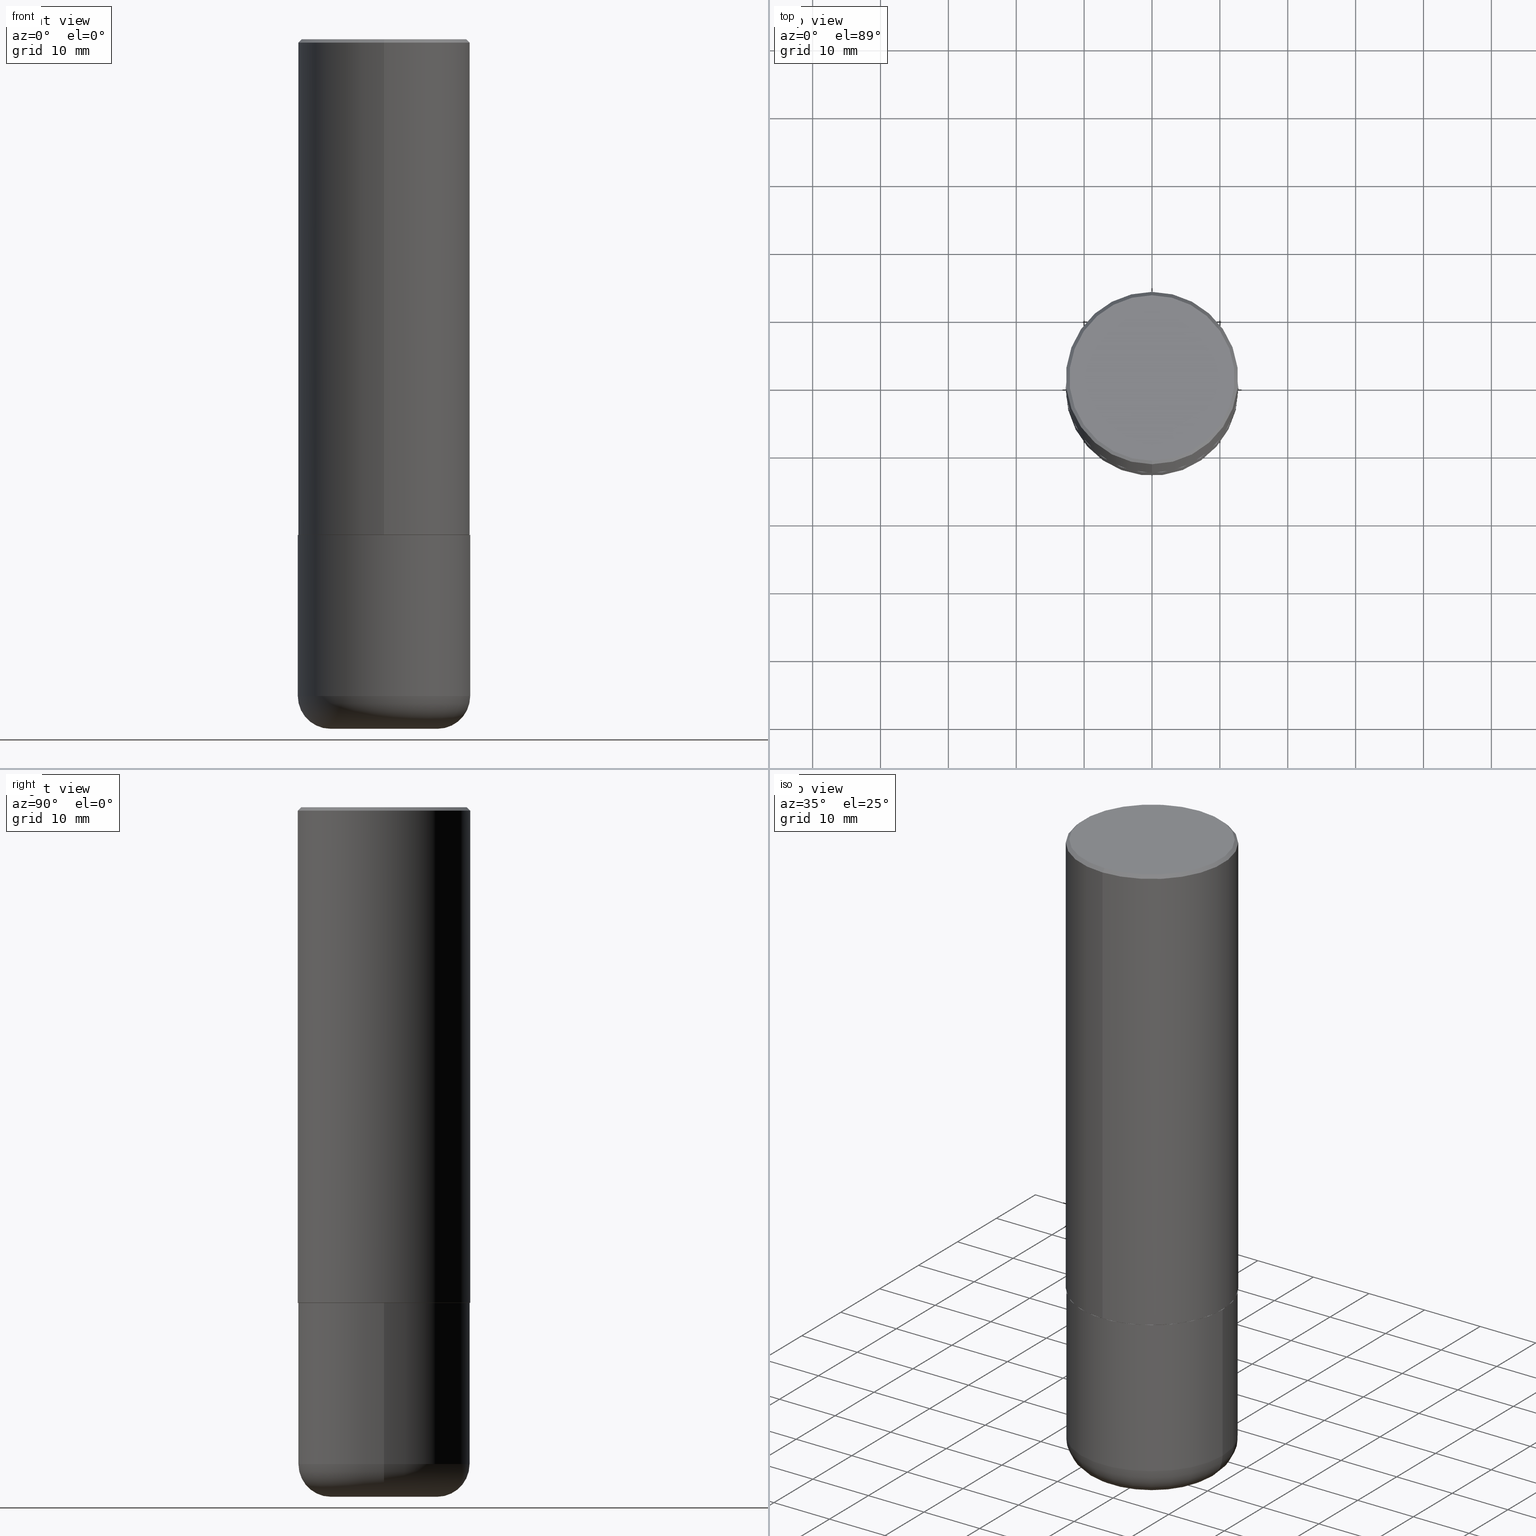
[diagram: canonical four-view strip — front | top / right | iso, engineering-drawing reading convention]
A machine part, canonical four-view strip (front | top / right | iso — engineering-drawing reading convention). The complete STEP part file that produces these views, byte-faithful:
ISO-10303-21;
HEADER;
FILE_DESCRIPTION (( 'STEP AP203' ),
    '1' );
FILE_NAME ('38612.STEP',
    '2024-03-03T08:16:31',
    ( '' ),
    ( '' ),
    'SwSTEP 2.0',
    'SolidWorks 2023',
    '' );
FILE_SCHEMA (( 'CONFIG_CONTROL_DESIGN' ));
ENDSEC;

DATA;
#1 = DATE_AND_TIME ( #295, #306 ) ;
#2 = DIRECTION ( 'NONE',  ( 1.000000000000000000, -6.982962677686263555E-15, 0.000000000000000000 ) ) ;
#3 = CC_DESIGN_DATE_AND_TIME_ASSIGNMENT ( #32, #195, ( #71 ) ) ;
#4 = FACE_OUTER_BOUND ( 'NONE', #118, .T. ) ;
#5 = ORIENTED_EDGE ( 'NONE', *, *, #134, .F. ) ;
#6 = AXIS2_PLACEMENT_3D ( 'NONE', #39, #392, #105 ) ;
#7 = ORIENTED_EDGE ( 'NONE', *, *, #237, .T. ) ;
#8 = DIRECTION ( 'NONE',  ( 2.445184338623419231E-29, -3.491888712582412558E-15, -1.000000000000000000 ) ) ;
#9 = CARTESIAN_POINT ( 'NONE',  ( -3.430248998885765387E-15, -0.5000000000000001110, -0.01999999999999835937 ) ) ;
#10 = ADVANCED_FACE ( 'NONE', ( #313 ), #322, .T. ) ;
#11 = CIRCLE ( 'NONE', #228, 0.3099999999999999978 ) ;
#12 = LOCAL_TIME ( 3, 16, 31.00000000000000000, #193 ) ;
#13 = DIRECTION ( 'NONE',  ( -2.445468806185136597E-29, 3.491481338843145583E-15, 1.000000000000000000 ) ) ;
#14 = ORIENTED_EDGE ( 'NONE', *, *, #165, .T. ) ;
#15 = CARTESIAN_POINT ( 'NONE',  ( 4.890368677246865823E-31, -6.983777425164860418E-17, -0.02000000000000010797 ) ) ;
#16 = EDGE_LOOP ( 'NONE', ( #344, #217 ) ) ;
#17 = ADVANCED_BREP_SHAPE_REPRESENTATION ( '38612', ( #349, #204, #164 ), #280 ) ;
#18 = DIRECTION ( 'NONE',  ( 2.438088387897960049E-29, -3.491481338843145188E-15, -1.000000000000000000 ) ) ;
#19 = ADVANCED_FACE ( 'NONE', ( #127 ), #257, .T. ) ;
#20 = EDGE_LOOP ( 'NONE', ( #243, #402, #315, #182 ) ) ;
#21 = AXIS2_PLACEMENT_3D ( 'NONE', #369, #82, #372 ) ;
#22 = CARTESIAN_POINT ( 'NONE',  ( 7.027459789203708394E-29, -1.003568815996185455E-14, -2.874000000000000110 ) ) ;
#23 = EDGE_LOOP ( 'NONE', ( #203, #271, #341, #363 ) ) ;
#24 = EDGE_LOOP ( 'NONE', ( #302, #376 ) ) ;
#25 = PERSON_AND_ORGANIZATION_ROLE ( 'creator' ) ;
#26 = LINE ( 'NONE', #35, #342 ) ;
#27 = EDGE_CURVE ( 'NONE', #187, #400, #97, .T. ) ;
#28 = PERSON_AND_ORGANIZATION ( #394, #124 ) ;
#29 = CIRCLE ( 'NONE', #149, 0.5000000000000001110 ) ;
#30 = CARTESIAN_POINT ( 'NONE',  ( 0.000000000000000000, 0.000000000000000000, 0.000000000000000000 ) ) ;
#31 = UNCERTAINTY_MEASURE_WITH_UNIT (LENGTH_MEASURE( 1.000000000000000082E-05 ), #317, 'distance_accuracy_value', 'NONE');
#32 = DATE_AND_TIME ( #325, #12 ) ;
#33 = DIRECTION ( 'NONE',  ( -2.445468806185136877E-29, 3.491481338843145188E-15, 1.000000000000000000 ) ) ;
#34 = DATE_AND_TIME ( #154, #150 ) ;
#35 = CARTESIAN_POINT ( 'NONE',  ( 0.5000000000000000000, -3.491481338843133355E-15, 2.438088387897967896E-29 ) ) ;
#36 = ADVANCED_FACE ( 'NONE', ( #410 ), #380, .T. ) ;
#37 = CARTESIAN_POINT ( 'NONE',  ( 3.857019660645771864E-45, -5.508085097911161414E-31, -1.577394227388672604E-16 ) ) ;
#38 = CARTESIAN_POINT ( 'NONE',  ( 3.552713678800538006E-15, 0.4999999999999903411, -2.874000000000001442 ) ) ;
#39 = CARTESIAN_POINT ( 'NONE',  ( 9.317236151565370389E-29, -1.330254390099238573E-14, -3.810000000000000053 ) ) ;
#40 = DIRECTION ( 'NONE',  ( -6.982962677686265922E-15, -1.000000000000000000, 3.491888712582412164E-15 ) ) ;
#41 = ORIENTED_EDGE ( 'NONE', *, *, #208, .T. ) ;
#42 = AXIS2_PLACEMENT_3D ( 'NONE', #43, #8, #390 ) ;
#43 = CARTESIAN_POINT ( 'NONE',  ( 3.351822085289409125E-15, 0.4800000000000002043, -1.754976293408992439E-15 ) ) ;
#44 = VERTEX_POINT ( 'NONE', #360 ) ;
#45 = CC_DESIGN_PERSON_AND_ORGANIZATION_ASSIGNMENT ( #259, #25, ( #190 ) ) ;
#46 = FACE_OUTER_BOUND ( 'NONE', #148, .T. ) ;
#47 = EDGE_LOOP ( 'NONE', ( #171, #304 ) ) ;
#48 = AXIS2_PLACEMENT_3D ( 'NONE', #260, #159, #290 ) ;
#49 = AXIS2_PLACEMENT_3D ( 'NONE', #77, #200, #395 ) ;
#50 = CARTESIAN_POINT ( 'NONE',  ( 0.3099999999999999978, -1.613064378545532091E-14, -3.999999999999999556 ) ) ;
#51 = ORIENTED_EDGE ( 'NONE', *, *, #27, .T. ) ;
#52 = PRODUCT_DEFINITION_SHAPE ( 'NONE', 'NONE',  #190 ) ;
#53 = CC_DESIGN_PERSON_AND_ORGANIZATION_ASSIGNMENT ( #28, #414, ( #199 ) ) ;
#54 = DIRECTION ( 'NONE',  ( 4.937700262164536209E-15, 0.7071067811865434649, -0.7071067811865516806 ) ) ;
#55 = EDGE_LOOP ( 'NONE', ( #245, #368, #353, #211 ) ) ;
#56 = CARTESIAN_POINT ( 'NONE',  ( 4.890368677246865823E-31, -6.983777425164860418E-17, -0.02000000000000010797 ) ) ;
#57 = ORIENTED_EDGE ( 'NONE', *, *, #81, .F. ) ;
#58 = AXIS2_PLACEMENT_3D ( 'NONE', #264, #68, #329 ) ;
#59 = COORDINATED_UNIVERSAL_TIME_OFFSET ( 5, 0, .BEHIND. ) ;
#60 = ORIENTED_EDGE ( 'NONE', *, *, #239, .T. ) ;
#61 = APPLICATION_CONTEXT ( 'configuration controlled 3d designs of mechanical parts and assemblies' ) ;
#62 = APPROVAL ( #104, 'UNSPECIFIED' ) ;
#63 = DIRECTION ( 'NONE',  ( 2.445184338623419792E-29, -3.491888712582412164E-15, -1.000000000000000000 ) ) ;
#64 = EDGE_CURVE ( 'NONE', #175, #113, #227, .T. ) ;
#65 = PERSON_AND_ORGANIZATION ( #394, #124 ) ;
#66 = VECTOR ( 'NONE', #143, 39.37007874015748143 ) ;
#67 = PERSON_AND_ORGANIZATION_ROLE ( 'classification_officer' ) ;
#68 = DIRECTION ( 'NONE',  ( -2.445184338623419792E-29, 3.491888712582412164E-15, 1.000000000000000000 ) ) ;
#69 = DIRECTION ( 'NONE',  ( -2.445468806185136597E-29, 3.491481338843145583E-15, 1.000000000000000000 ) ) ;
#70 = CONICAL_SURFACE ( 'NONE', #58, 0.4989999999999999991, 0.7853981633977213939 ) ;
#71 = SECURITY_CLASSIFICATION ( '', '', #357 ) ;
#72 = EDGE_CURVE ( 'NONE', #115, #175, #352, .T. ) ;
#73 = PLANE ( 'NONE',  #42 ) ;
#74 = CONICAL_SURFACE ( 'NONE', #130, 0.5000000000000001110, 0.7853981633974459475 ) ;
#75 = DIMENSIONAL_EXPONENTS ( 1.000000000000000000, 0.000000000000000000, 0.000000000000000000, 0.000000000000000000, 0.000000000000000000, 0.000000000000000000, 0.000000000000000000 ) ;
#76 = EDGE_CURVE ( 'NONE', #409, #44, #26, .T. ) ;
#77 = CARTESIAN_POINT ( 'NONE',  ( 9.317236151565370389E-29, -1.330254390099238573E-14, -3.810000000000000053 ) ) ;
#78 = ORIENTED_EDGE ( 'NONE', *, *, #76, .F. ) ;
#79 = DIRECTION ( 'NONE',  ( 1.000000000000000000, -6.982962677686266711E-15, 0.000000000000000000 ) ) ;
#80 = VERTEX_POINT ( 'NONE', #223 ) ;
#81 = EDGE_CURVE ( 'NONE', #409, #175, #220, .T. ) ;
#82 = DIRECTION ( 'NONE',  ( -6.982962677686266711E-15, -1.000000000000000000, 3.491481338843145583E-15 ) ) ;
#83 = ORIENTED_EDGE ( 'NONE', *, *, #76, .T. ) ;
#84 = EDGE_CURVE ( 'NONE', #371, #187, #416, .T. ) ;
#85 = CIRCLE ( 'NONE', #262, 0.5000000000000000000 ) ;
#86 = FACE_OUTER_BOUND ( 'NONE', #24, .T. ) ;
#87 = VERTEX_POINT ( 'NONE', #384 ) ;
#88 = DIRECTION ( 'NONE',  ( -6.982962677686265922E-15, -1.000000000000000000, 3.284787166730577015E-15 ) ) ;
#89 = EDGE_LOOP ( 'NONE', ( #284, #14 ) ) ;
#90 = ADVANCED_FACE ( 'NONE', ( #230 ), #212, .T. ) ;
#91 = LINE ( 'NONE', #244, #66 ) ;
#92 = ORIENTED_EDGE ( 'NONE', *, *, #333, .F. ) ;
#93 = AXIS2_PLACEMENT_3D ( 'NONE', #278, #401, #88 ) ;
#94 = CIRCLE ( 'NONE', #412, 0.5000000000000003331 ) ;
#95 = CARTESIAN_POINT ( 'NONE',  ( 3.545608251442969735E-15, 0.4989999999999899516, -2.875000000000001332 ) ) ;
#96 = APPROVAL_ROLE ( '' ) ;
#97 = LINE ( 'NONE', #320, #234 ) ;
#98 = COORDINATED_UNIVERSAL_TIME_OFFSET ( 5, 0, .BEHIND. ) ;
#99 = CIRCLE ( 'NONE', #288, 0.5000000000000000000 ) ;
#100 = PERSON_AND_ORGANIZATION_ROLE ( 'design_owner' ) ;
#101 = DIRECTION ( 'NONE',  ( -2.445184338623420072E-29, 3.491888712582412558E-15, 1.000000000000000000 ) ) ;
#102 = CARTESIAN_POINT ( 'NONE',  ( 0.000000000000000000, 0.000000000000000000, 0.000000000000000000 ) ) ;
#103 = CIRCLE ( 'NONE', #238, 0.3099999999999999978 ) ;
#104 = APPROVAL_STATUS ( 'not_yet_approved' ) ;
#105 = DIRECTION ( 'NONE',  ( 1.000000000000000000, -6.982962677686266711E-15, 0.000000000000000000 ) ) ;
#106 = ADVANCED_FACE ( 'NONE', ( #160 ), #70, .T. ) ;
#107 = EDGE_CURVE ( 'NONE', #214, #80, #191, .T. ) ;
#108 = AXIS2_PLACEMENT_3D ( 'NONE', #413, #196, #232 ) ;
#109 = VECTOR ( 'NONE', #54, 39.37007874015748143 ) ;
#110 = DIRECTION ( 'NONE',  ( -6.982962677686265922E-15, -1.000000000000000000, 3.491888712582412558E-15 ) ) ;
#111 = ORIENTED_EDGE ( 'NONE', *, *, #178, .F. ) ;
#112 = DIRECTION ( 'NONE',  ( -2.445184338623419792E-29, 3.491888712582412164E-15, 1.000000000000000000 ) ) ;
#113 = VERTEX_POINT ( 'NONE', #136 ) ;
#114 = CARTESIAN_POINT ( 'NONE',  ( 9.781875224740545266E-29, -1.396592535537258075E-14, -3.999999999999999556 ) ) ;
#115 = VERTEX_POINT ( 'NONE', #297 ) ;
#116 = AXIS2_PLACEMENT_3D ( 'NONE', #56, #63, #153 ) ;
#117 = DIRECTION ( 'NONE',  ( 1.000000000000000000, -6.982962677686263555E-15, 0.000000000000000000 ) ) ;
#118 = EDGE_LOOP ( 'NONE', ( #7, #51, #5, #92 ) ) ;
#119 = CARTESIAN_POINT ( 'NONE',  ( 3.549160965121771423E-15, 0.4989999999999899516, -2.875000000000001332 ) ) ;
#120 = ORIENTED_EDGE ( 'NONE', *, *, #72, .F. ) ;
#121 = ADVANCED_FACE ( 'NONE', ( #4 ), #338, .T. ) ;
#122 = CARTESIAN_POINT ( 'NONE',  ( 0.000000000000000000, 0.000000000000000000, 0.000000000000000000 ) ) ;
#123 = DIRECTION ( 'NONE',  ( -1.000000000000000000, 7.105427357600999492E-15, 0.000000000000000000 ) ) ;
#124 = ORGANIZATION ( 'UNSPECIFIED', 'UNSPECIFIED', '' ) ;
#125 = CARTESIAN_POINT ( 'NONE',  ( -0.5000000000000000000, 3.552713678800500929E-15, -2.459467545127452891E-29 ) ) ;
#126 = PERSON_AND_ORGANIZATION ( #394, #124 ) ;
#127 = FACE_OUTER_BOUND ( 'NONE', #379, .T. ) ;
#128 = DIRECTION ( 'NONE',  ( 5.024295867789434219E-15, 0.7071067811867430830, 0.7071067811863519514 ) ) ;
#129 =( NAMED_UNIT ( * ) SI_UNIT ( $, .STERADIAN. ) SOLID_ANGLE_UNIT ( ) );
#130 = AXIS2_PLACEMENT_3D ( 'NONE', #378, #276, #305 ) ;
#131 = DIRECTION ( 'NONE',  ( -6.982962677686265922E-15, -1.000000000000000000, 3.491888712582412164E-15 ) ) ;
#132 = LINE ( 'NONE', #388, #109 ) ;
#133 = DIRECTION ( 'NONE',  ( -6.982962677686265922E-15, -1.000000000000000000, 3.491888712582411769E-15 ) ) ;
#134 = EDGE_CURVE ( 'NONE', #277, #400, #29, .T. ) ;
#135 = CONICAL_SURFACE ( 'NONE', #116, 0.5000000000000001110, 0.7853981633974459475 ) ;
#136 = CARTESIAN_POINT ( 'NONE',  ( -0.5000000000000000000, -8.117562696282713489E-15, -2.875000000000000000 ) ) ;
#137 = PRODUCT ( '38612', '38612', '', ( #321 ) ) ;
#138 = APPROVAL ( #415, 'UNSPECIFIED' ) ;
#139 = APPROVAL_DATE_TIME ( #1, #62 ) ;
#140 = CYLINDRICAL_SURFACE ( 'NONE', #176, 0.5000000000000000000 ) ;
#141 = DIRECTION ( 'NONE',  ( -6.982962677686265922E-15, -1.000000000000000000, 3.284787166730577015E-15 ) ) ;
#142 = AXIS2_PLACEMENT_3D ( 'NONE', #210, #340, #282 ) ;
#143 = DIRECTION ( 'NONE',  ( -4.937700262165896205E-15, -0.7071067811867381980, 0.7071067811863568364 ) ) ;
#144 = ORIENTED_EDGE ( 'NONE', *, *, #324, .F. ) ;
#145 = LINE ( 'NONE', #9, #168 ) ;
#146 = ORIENTED_EDGE ( 'NONE', *, *, #27, .F. ) ;
#147 = DIRECTION ( 'NONE',  ( 1.000000000000000000, -6.982962677686267499E-15, 4.883557194083114022E-29 ) ) ;
#148 = EDGE_LOOP ( 'NONE', ( #406, #241, #41, #219 ) ) ;
#149 = AXIS2_PLACEMENT_3D ( 'NONE', #387, #300, #265 ) ;
#150 = LOCAL_TIME ( 3, 16, 31.00000000000000000, #229 ) ;
#151 = CARTESIAN_POINT ( 'NONE',  ( -3.430248998885765387E-15, -0.5000000000000001110, -0.01999999999999835937 ) ) ;
#152 = ORIENTED_EDGE ( 'NONE', *, *, #370, .F. ) ;
#153 = DIRECTION ( 'NONE',  ( 6.982962677686265133E-15, 1.000000000000000000, -3.491643216902135619E-15 ) ) ;
#154 = CALENDAR_DATE ( 2024, 3, 3 ) ;
#155 = CARTESIAN_POINT ( 'NONE',  ( 7.029904973542331656E-29, -1.003918004867443438E-14, -2.875000000000000000 ) ) ;
#156 = DESIGN_CONTEXT ( 'detailed design', #307, 'design' ) ;
#157 = ADVANCED_FACE ( 'NONE', ( #206 ), #298, .T. ) ;
#158 = APPLICATION_PROTOCOL_DEFINITION ( 'international standard', 'config_control_design', 1994, #307 ) ;
#159 = DIRECTION ( 'NONE',  ( -2.445468806185136597E-29, 3.491481338843145583E-15, 1.000000000000000000 ) ) ;
#160 = FACE_OUTER_BOUND ( 'NONE', #23, .T. ) ;
#161 = ADVANCED_FACE ( 'NONE', ( #336 ), #73, .F. ) ;
#162 = VECTOR ( 'NONE', #361, 39.37007874015748143 ) ;
#163 = CIRCLE ( 'NONE', #142, 0.5000000000000003331 ) ;
#164 = AXIS2_PLACEMENT_3D ( 'NONE', #122, #224, #251 ) ;
#165 = EDGE_CURVE ( 'NONE', #80, #214, #316, .T. ) ;
#166 = DIRECTION ( 'NONE',  ( -2.445468806185136597E-29, 3.491481338843145583E-15, 1.000000000000000000 ) ) ;
#167 = ADVANCED_FACE ( 'NONE', ( #339 ), #140, .T. ) ;
#168 = VECTOR ( 'NONE', #183, 39.37007874015748143 ) ;
#169 = ORIENTED_EDGE ( 'NONE', *, *, #81, .T. ) ;
#170 = DIRECTION ( 'NONE',  ( -2.445184338623419792E-29, 3.491888712582412164E-15, 1.000000000000000000 ) ) ;
#171 = ORIENTED_EDGE ( 'NONE', *, *, #258, .F. ) ;
#172 = DIRECTION ( 'NONE',  ( -2.445468806185136597E-29, 3.491481338843145583E-15, 1.000000000000000000 ) ) ;
#173 = PLANE ( 'NONE',  #185 ) ;
#174 = AXIS2_PLACEMENT_3D ( 'NONE', #358, #354, #123 ) ;
#175 = VERTEX_POINT ( 'NONE', #332 ) ;
#176 = AXIS2_PLACEMENT_3D ( 'NONE', #102, #69, #334 ) ;
#177 = CC_DESIGN_APPROVAL ( #62, ( #71 ) ) ;
#178 = EDGE_CURVE ( 'NONE', #175, #409, #294, .T. ) ;
#179 = DIRECTION ( 'NONE',  ( -6.982962677686265922E-15, -1.000000000000000000, 3.278217592397113496E-15 ) ) ;
#180 = EDGE_LOOP ( 'NONE', ( #308, #347, #57, #350 ) ) ;
#181 = DIRECTION ( 'NONE',  ( -2.445184338623419792E-29, 3.491888712582412164E-15, 1.000000000000000000 ) ) ;
#182 = ORIENTED_EDGE ( 'NONE', *, *, #208, .F. ) ;
#183 = DIRECTION ( 'NONE',  ( -4.851104656540952442E-15, -0.7071067811865483499, -0.7071067811865467956 ) ) ;
#184 = ORIENTED_EDGE ( 'NONE', *, *, #333, .T. ) ;
#185 = AXIS2_PLACEMENT_3D ( 'NONE', #405, #247, #110 ) ;
#186 =( LENGTH_UNIT ( ) NAMED_UNIT ( * ) SI_UNIT ( $, .METRE. ) );
#187 = VERTEX_POINT ( 'NONE', #38 ) ;
#188 = CALENDAR_DATE ( 2024, 3, 3 ) ;
#189 = CALENDAR_DATE ( 2024, 3, 3 ) ;
#190 = PRODUCT_DEFINITION ( 'UNKNOWN', '', #199, #156 ) ;
#191 = CIRCLE ( 'NONE', #330, 0.4800000000000002043 ) ;
#192 = LOCAL_TIME ( 3, 16, 31.00000000000000000, #59 ) ;
#193 = COORDINATED_UNIVERSAL_TIME_OFFSET ( 5, 0, .BEHIND. ) ;
#194 = DIRECTION ( 'NONE',  ( -2.445184338623419792E-29, 3.491888712582412164E-15, 1.000000000000000000 ) ) ;
#195 = DATE_TIME_ROLE ( 'classification_date' ) ;
#196 = DIRECTION ( 'NONE',  ( -2.445468806185136597E-29, 3.491481338843145583E-15, 1.000000000000000000 ) ) ;
#197 = EDGE_CURVE ( 'NONE', #209, #115, #11, .T. ) ;
#198 = AXIS2_PLACEMENT_3D ( 'NONE', #30, #194, #225 ) ;
#199 = PRODUCT_DEFINITION_FORMATION_WITH_SPECIFIED_SOURCE ( 'ANY', '', #137, .NOT_KNOWN. ) ;
#200 = DIRECTION ( 'NONE',  ( -2.445468806185136597E-29, 3.491481338843145583E-15, 1.000000000000000000 ) ) ;
#201 = PERSON_AND_ORGANIZATION ( #394, #124 ) ;
#202 = CARTESIAN_POINT ( 'NONE',  ( 3.857019660645771864E-45, -5.508085097911161414E-31, -1.577394227388672604E-16 ) ) ;
#203 = ORIENTED_EDGE ( 'NONE', *, *, #84, .F. ) ;
#204 = MANIFOLD_SOLID_BREP ( 'Body-Move/Copy2[2]', #261 ) ;
#205 = AXIS2_PLACEMENT_3D ( 'NONE', #273, #181, #141 ) ;
#206 = FACE_OUTER_BOUND ( 'NONE', #180, .T. ) ;
#207 = DIRECTION ( 'NONE',  ( -2.445468806185136597E-29, 3.491481338843145583E-15, 1.000000000000000000 ) ) ;
#208 = EDGE_CURVE ( 'NONE', #214, #400, #132, .T. ) ;
#209 = VERTEX_POINT ( 'NONE', #50 ) ;
#210 = CARTESIAN_POINT ( 'NONE',  ( 7.027459789203708394E-29, -1.003568815996185455E-14, -2.874000000000000110 ) ) ;
#211 = ORIENTED_EDGE ( 'NONE', *, *, #386, .F. ) ;
#212 = CONICAL_SURFACE ( 'NONE', #221, 0.4989999999999999991, 0.7853981633977213939 ) ;
#213 = PLANE ( 'NONE',  #274 ) ;
#214 = VERTEX_POINT ( 'NONE', #242 ) ;
#215 = ADVANCED_FACE ( 'NONE', ( #398 ), #246, .T. ) ;
#216 = CARTESIAN_POINT ( 'NONE',  ( 3.491481338843133750E-15, 0.5000000000000000000, -0.02000000000000185310 ) ) ;
#217 = ORIENTED_EDGE ( 'NONE', *, *, #381, .F. ) ;
#218 = CARTESIAN_POINT ( 'NONE',  ( 7.030722817782267716E-29, -1.003800884917404311E-14, -2.875000000000000000 ) ) ;
#219 = ORIENTED_EDGE ( 'NONE', *, *, #370, .T. ) ;
#220 = CIRCLE ( 'NONE', #48, 0.5000000000000000000 ) ;
#221 = AXIS2_PLACEMENT_3D ( 'NONE', #155, #286, #355 ) ;
#222 = PERSON_AND_ORGANIZATION ( #394, #124 ) ;
#223 = CARTESIAN_POINT ( 'NONE',  ( -3.361644018908050450E-15, -0.4800000000000002043, 1.518367159300691351E-15 ) ) ;
#224 = DIRECTION ( 'NONE',  ( 0.000000000000000000, 0.000000000000000000, 1.000000000000000000 ) ) ;
#225 = DIRECTION ( 'NONE',  ( -6.982962677686265922E-15, -1.000000000000000000, 3.491888712582411769E-15 ) ) ;
#226 = PERSON_AND_ORGANIZATION_ROLE ( 'design_supplier' ) ;
#227 = LINE ( 'NONE', #125, #162 ) ;
#228 = AXIS2_PLACEMENT_3D ( 'NONE', #364, #166, #2 ) ;
#229 = COORDINATED_UNIVERSAL_TIME_OFFSET ( 5, 0, .BEHIND. ) ;
#230 = FACE_OUTER_BOUND ( 'NONE', #55, .T. ) ;
#231 = APPLICATION_PROTOCOL_DEFINITION ( 'international standard', 'config_control_design', 1994, #61 ) ;
#232 = DIRECTION ( 'NONE',  ( 1.000000000000000000, -6.982962677686266711E-15, 4.876176775795935793E-29 ) ) ;
#233 = DIRECTION ( 'NONE',  ( -2.445184338623419792E-29, 3.491888712582412164E-15, 1.000000000000000000 ) ) ;
#234 = VECTOR ( 'NONE', #101, 39.37007874015748143 ) ;
#235 = AXIS2_PLACEMENT_3D ( 'NONE', #15, #112, #351 ) ;
#236 = APPROVAL_ROLE ( '' ) ;
#237 = EDGE_CURVE ( 'NONE', #87, #187, #94, .T. ) ;
#238 = AXIS2_PLACEMENT_3D ( 'NONE', #114, #13, #117 ) ;
#239 = EDGE_CURVE ( 'NONE', #209, #409, #272, .T. ) ;
#240 = DIRECTION ( 'NONE',  ( -2.445468806185136597E-29, 3.491481338843145583E-15, 1.000000000000000000 ) ) ;
#241 = ORIENTED_EDGE ( 'NONE', *, *, #107, .F. ) ;
#242 = CARTESIAN_POINT ( 'NONE',  ( 3.421651712066271635E-15, 0.4800000000000002043, -1.833846004778425872E-15 ) ) ;
#243 = ORIENTED_EDGE ( 'NONE', *, *, #165, .F. ) ;
#244 = CARTESIAN_POINT ( 'NONE',  ( -3.484498376165376344E-15, -0.4990000000000100466, -2.874999999999998224 ) ) ;
#245 = ORIENTED_EDGE ( 'NONE', *, *, #258, .T. ) ;
#246 = TOROIDAL_SURFACE ( 'NONE', #389, 0.3099999999999999978, 0.1899999999999996692 ) ;
#247 = DIRECTION ( 'NONE',  ( -2.445184338623419231E-29, 3.491888712582412558E-15, 1.000000000000000000 ) ) ;
#248 = ORIENTED_EDGE ( 'NONE', *, *, #178, .T. ) ;
#249 = CARTESIAN_POINT ( 'NONE',  ( 7.030722817782267716E-29, -1.003800884917404311E-14, -2.875000000000000000 ) ) ;
#250 = ORIENTED_EDGE ( 'NONE', *, *, #381, .T. ) ;
#251 = DIRECTION ( 'NONE',  ( 1.000000000000000000, 0.000000000000000000, 0.000000000000000000 ) ) ;
#252 = CIRCLE ( 'NONE', #235, 0.5000000000000001110 ) ;
#253 = APPROVAL_PERSON_ORGANIZATION ( #201, #62, #236 ) ;
#254 =( NAMED_UNIT ( * ) PLANE_ANGLE_UNIT ( ) SI_UNIT ( $, .RADIAN. ) );
#255 = CC_DESIGN_PERSON_AND_ORGANIZATION_ASSIGNMENT ( #126, #226, ( #199 ) ) ;
#256 = APPROVAL_DATE_TIME ( #319, #138 ) ;
#257 = CYLINDRICAL_SURFACE ( 'NONE', #108, 0.5000000000000000000 ) ;
#258 = EDGE_CURVE ( 'NONE', #318, #371, #337, .T. ) ;
#259 = PERSON_AND_ORGANIZATION ( #394, #124 ) ;
#260 = CARTESIAN_POINT ( 'NONE',  ( 9.317236151565370389E-29, -1.330254390099238573E-14, -3.810000000000000053 ) ) ;
#261 = CLOSED_SHELL ( 'NONE', ( #90, #121, #403, #377, #10, #106, #268, #161 ) ) ;
#262 = AXIS2_PLACEMENT_3D ( 'NONE', #218, #172, #343 ) ;
#263 = LENGTH_MEASURE_WITH_UNIT ( LENGTH_MEASURE( 0.02539999999999999897 ), #186 );
#264 = CARTESIAN_POINT ( 'NONE',  ( 7.029904973542331656E-29, -1.003918004867443438E-14, -2.875000000000000000 ) ) ;
#265 = DIRECTION ( 'NONE',  ( -6.982962677686265133E-15, -1.000000000000000000, 3.491643216902135619E-15 ) ) ;
#266 = AXIS2_PLACEMENT_3D ( 'NONE', #202, #170, #40 ) ;
#267 = DIRECTION ( 'NONE',  ( -2.445184338623419792E-29, 3.491888712582412164E-15, 1.000000000000000000 ) ) ;
#268 = ADVANCED_FACE ( 'NONE', ( #367 ), #173, .F. ) ;
#269 = EDGE_LOOP ( 'NONE', ( #120, #250, #60, #111 ) ) ;
#270 = EDGE_CURVE ( 'NONE', #187, #87, #163, .T. ) ;
#271 = ORIENTED_EDGE ( 'NONE', *, *, #335, .T. ) ;
#272 = CIRCLE ( 'NONE', #21, 0.1899999999999996692 ) ;
#273 = CARTESIAN_POINT ( 'NONE',  ( 7.029904973542331656E-29, -1.003918004867443438E-14, -2.875000000000000000 ) ) ;
#274 = AXIS2_PLACEMENT_3D ( 'NONE', #346, #18, #375 ) ;
#275 = ORIENTED_EDGE ( 'NONE', *, *, #64, .T. ) ;
#276 = DIRECTION ( 'NONE',  ( 2.445184338623419792E-29, -3.491888712582412164E-15, -1.000000000000000000 ) ) ;
#277 = VERTEX_POINT ( 'NONE', #151 ) ;
#278 = CARTESIAN_POINT ( 'NONE',  ( 7.029904973542331656E-29, -1.003918004867443438E-14, -2.875000000000000000 ) ) ;
#279 = ORIENTED_EDGE ( 'NONE', *, *, #64, .F. ) ;
#280 =( GEOMETRIC_REPRESENTATION_CONTEXT ( 3 ) GLOBAL_UNCERTAINTY_ASSIGNED_CONTEXT ( ( #31 ) ) GLOBAL_UNIT_ASSIGNED_CONTEXT ( ( #317, #254, #129 ) ) REPRESENTATION_CONTEXT ( 'NONE', 'WORKASPACE' ) );
#281 = LOCAL_TIME ( 3, 16, 31.00000000000000000, #98 ) ;
#282 = DIRECTION ( 'NONE',  ( -6.982962677686265922E-15, -1.000000000000000000, 3.278217592397113496E-15 ) ) ;
#283 = EDGE_LOOP ( 'NONE', ( #169, #275, #144, #78 ) ) ;
#284 = ORIENTED_EDGE ( 'NONE', *, *, #107, .T. ) ;
#285 = DATE_TIME_ROLE ( 'creation_date' ) ;
#286 = DIRECTION ( 'NONE',  ( -2.445184338623419792E-29, 3.491888712582412164E-15, 1.000000000000000000 ) ) ;
#287 = VECTOR ( 'NONE', #128, 39.37007874015748143 ) ;
#288 = AXIS2_PLACEMENT_3D ( 'NONE', #249, #240, #79 ) ;
#289 = APPROVAL_ROLE ( '' ) ;
#290 = DIRECTION ( 'NONE',  ( 1.000000000000000000, -6.982962677686266711E-15, 0.000000000000000000 ) ) ;
#291 = EDGE_CURVE ( 'NONE', #80, #277, #145, .T. ) ;
#292 = PERSON_AND_ORGANIZATION ( #394, #124 ) ;
#293 = AXIS2_PLACEMENT_3D ( 'NONE', #326, #382, #328 ) ;
#294 = CIRCLE ( 'NONE', #6, 0.5000000000000000000 ) ;
#295 = CALENDAR_DATE ( 2024, 3, 3 ) ;
#296 = CC_DESIGN_PERSON_AND_ORGANIZATION_ASSIGNMENT ( #292, #100, ( #137 ) ) ;
#297 = CARTESIAN_POINT ( 'NONE',  ( -0.3099999999999999978, -1.075653654835407967E-14, -3.999999999999999556 ) ) ;
#298 = TOROIDAL_SURFACE ( 'NONE', #49, 0.3099999999999999978, 0.1899999999999996692 ) ;
#299 = SHAPE_DEFINITION_REPRESENTATION ( #52, #17 ) ;
#300 = DIRECTION ( 'NONE',  ( -2.445184338623419792E-29, 3.491888712582412164E-15, 1.000000000000000000 ) ) ;
#301 = CARTESIAN_POINT ( 'NONE',  ( 0.000000000000000000, 0.000000000000000000, 0.000000000000000000 ) ) ;
#302 = ORIENTED_EDGE ( 'NONE', *, *, #324, .T. ) ;
#303 = DIRECTION ( 'NONE',  ( -2.445184338623419792E-29, 3.491888712582412164E-15, 1.000000000000000000 ) ) ;
#304 = ORIENTED_EDGE ( 'NONE', *, *, #335, .F. ) ;
#305 = DIRECTION ( 'NONE',  ( 6.982962677686265133E-15, 1.000000000000000000, -3.491643216902135619E-15 ) ) ;
#306 = LOCAL_TIME ( 3, 16, 31.00000000000000000, #393 ) ;
#307 = APPLICATION_CONTEXT ( 'configuration controlled 3d designs of mechanical parts and assemblies' ) ;
#308 = ORIENTED_EDGE ( 'NONE', *, *, #197, .T. ) ;
#309 = CC_DESIGN_DATE_AND_TIME_ASSIGNMENT ( #34, #285, ( #190 ) ) ;
#310 = CARTESIAN_POINT ( 'NONE',  ( -3.491481338843134539E-15, -0.5000000000000002220, 1.745944356291206674E-15 ) ) ;
#311 = EDGE_LOOP ( 'NONE', ( #146, #366, #184, #152 ) ) ;
#312 = CARTESIAN_POINT ( 'NONE',  ( 9.317236151565370389E-29, -1.330254390099238573E-14, -3.810000000000000053 ) ) ;
#313 = FACE_OUTER_BOUND ( 'NONE', #311, .T. ) ;
#314 = DIRECTION ( 'NONE',  ( -2.445184338623420072E-29, 3.491888712582412558E-15, 1.000000000000000000 ) ) ;
#315 = ORIENTED_EDGE ( 'NONE', *, *, #134, .T. ) ;
#316 = CIRCLE ( 'NONE', #266, 0.4800000000000002043 ) ;
#317 =( CONVERSION_BASED_UNIT ( 'INCH', #263 ) LENGTH_UNIT ( ) NAMED_UNIT ( #75 ) );
#318 = VERTEX_POINT ( 'NONE', #408 ) ;
#319 = DATE_AND_TIME ( #188, #192 ) ;
#320 = CARTESIAN_POINT ( 'NONE',  ( 3.552713678800501718E-15, 0.5000000000000002220, -1.745944356291206674E-15 ) ) ;
#321 = MECHANICAL_CONTEXT ( 'NONE', #61, 'mechanical' ) ;
#322 = CYLINDRICAL_SURFACE ( 'NONE', #198, 0.5000000000000002220 ) ;
#323 = CIRCLE ( 'NONE', #205, 0.4989999999999999991 ) ;
#324 = EDGE_CURVE ( 'NONE', #44, #113, #85, .T. ) ;
#325 = CALENDAR_DATE ( 2024, 3, 3 ) ;
#326 = CARTESIAN_POINT ( 'NONE',  ( 1.470481524561013617E-28, -6.915995049142223093E-15, -4.000000000000000000 ) ) ;
#327 = APPROVAL_DATE_TIME ( #359, #345 ) ;
#328 = DIRECTION ( 'NONE',  ( -1.000000000000000000, 6.982962677686265922E-15, -4.876176775795935793E-29 ) ) ;
#329 = DIRECTION ( 'NONE',  ( -6.982962677686265922E-15, -1.000000000000000000, 3.284787166730577015E-15 ) ) ;
#330 = AXIS2_PLACEMENT_3D ( 'NONE', #37, #233, #131 ) ;
#331 = CC_DESIGN_APPROVAL ( #345, ( #199 ) ) ;
#332 = CARTESIAN_POINT ( 'NONE',  ( -0.4999999999999998335, -9.749830222191884801E-15, -3.810000000000000053 ) ) ;
#333 = EDGE_CURVE ( 'NONE', #87, #277, #399, .T. ) ;
#334 = DIRECTION ( 'NONE',  ( 1.000000000000000000, -6.982962677686266711E-15, 4.876176775795935793E-29 ) ) ;
#335 = EDGE_CURVE ( 'NONE', #371, #318, #323, .T. ) ;
#336 = FACE_OUTER_BOUND ( 'NONE', #89, .T. ) ;
#337 = CIRCLE ( 'NONE', #93, 0.4989999999999999991 ) ;
#338 = CYLINDRICAL_SURFACE ( 'NONE', #396, 0.5000000000000002220 ) ;
#339 = FACE_OUTER_BOUND ( 'NONE', #283, .T. ) ;
#340 = DIRECTION ( 'NONE',  ( -2.445184338623419792E-29, 3.491888712582412164E-15, 1.000000000000000000 ) ) ;
#341 = ORIENTED_EDGE ( 'NONE', *, *, #386, .T. ) ;
#342 = VECTOR ( 'NONE', #33, 39.37007874015748143 ) ;
#343 = DIRECTION ( 'NONE',  ( 1.000000000000000000, -6.982962677686266711E-15, 0.000000000000000000 ) ) ;
#344 = ORIENTED_EDGE ( 'NONE', *, *, #197, .F. ) ;
#345 = APPROVAL ( #383, 'UNSPECIFIED' ) ;
#346 = CARTESIAN_POINT ( 'NONE',  ( 7.030722817782267716E-29, -1.003800884917404311E-14, -2.875000000000000000 ) ) ;
#347 = ORIENTED_EDGE ( 'NONE', *, *, #72, .T. ) ;
#348 = FACE_OUTER_BOUND ( 'NONE', #20, .T. ) ;
#349 = MANIFOLD_SOLID_BREP ( 'Body-Move/Copy2[1]', #404 ) ;
#350 = ORIENTED_EDGE ( 'NONE', *, *, #239, .F. ) ;
#351 = DIRECTION ( 'NONE',  ( -6.982962677686265133E-15, -1.000000000000000000, 3.491643216902135619E-15 ) ) ;
#352 = CIRCLE ( 'NONE', #174, 0.1899999999999996692 ) ;
#353 = ORIENTED_EDGE ( 'NONE', *, *, #237, .F. ) ;
#354 = DIRECTION ( 'NONE',  ( 7.105427357601001859E-15, 1.000000000000000000, -3.491481338843145583E-15 ) ) ;
#355 = DIRECTION ( 'NONE',  ( -6.982962677686265922E-15, -1.000000000000000000, 3.284787166730577015E-15 ) ) ;
#356 = PRODUCT_RELATED_PRODUCT_CATEGORY ( 'detail', '', ( #137 ) ) ;
#357 = SECURITY_CLASSIFICATION_LEVEL ( 'unclassified' ) ;
#358 = CARTESIAN_POINT ( 'NONE',  ( -0.3099999999999999978, -1.109986142013607478E-14, -3.810000000000000053 ) ) ;
#359 = DATE_AND_TIME ( #189, #281 ) ;
#360 = CARTESIAN_POINT ( 'NONE',  ( 0.5000000000000000000, -1.352949018801717646E-14, -2.875000000000000000 ) ) ;
#361 = DIRECTION ( 'NONE',  ( -2.445468806185136877E-29, 3.491481338843145188E-15, 1.000000000000000000 ) ) ;
#362 = CC_DESIGN_SECURITY_CLASSIFICATION ( #71, ( #199 ) ) ;
#363 = ORIENTED_EDGE ( 'NONE', *, *, #270, .F. ) ;
#364 = CARTESIAN_POINT ( 'NONE',  ( 9.781875224740545266E-29, -1.396592535537258075E-14, -3.999999999999999556 ) ) ;
#365 = CC_DESIGN_APPROVAL ( #138, ( #190 ) ) ;
#366 = ORIENTED_EDGE ( 'NONE', *, *, #270, .T. ) ;
#367 = FACE_OUTER_BOUND ( 'NONE', #47, .T. ) ;
#368 = ORIENTED_EDGE ( 'NONE', *, *, #84, .T. ) ;
#369 = CARTESIAN_POINT ( 'NONE',  ( 0.3099999999999999978, -1.546726233107512746E-14, -3.810000000000000053 ) ) ;
#370 = EDGE_CURVE ( 'NONE', #400, #277, #252, .T. ) ;
#371 = VERTEX_POINT ( 'NONE', #119 ) ;
#372 = DIRECTION ( 'NONE',  ( 1.000000000000000000, -6.982962677686262766E-15, 0.000000000000000000 ) ) ;
#373 = ORIENTED_EDGE ( 'NONE', *, *, #374, .F. ) ;
#374 = EDGE_CURVE ( 'NONE', #113, #44, #99, .T. ) ;
#375 = DIRECTION ( 'NONE',  ( -1.000000000000000000, 6.982962677686265922E-15, -4.876176775795935793E-29 ) ) ;
#376 = ORIENTED_EDGE ( 'NONE', *, *, #374, .T. ) ;
#377 = ADVANCED_FACE ( 'NONE', ( #46 ), #74, .T. ) ;
#378 = CARTESIAN_POINT ( 'NONE',  ( 4.890368677246865823E-31, -6.983777425164860418E-17, -0.02000000000000010797 ) ) ;
#379 = EDGE_LOOP ( 'NONE', ( #279, #248, #83, #373 ) ) ;
#380 = PLANE ( 'NONE',  #293 ) ;
#381 = EDGE_CURVE ( 'NONE', #115, #209, #103, .T. ) ;
#382 = DIRECTION ( 'NONE',  ( 2.438088387897960049E-29, -3.491481338843145188E-15, -1.000000000000000000 ) ) ;
#383 = APPROVAL_STATUS ( 'not_yet_approved' ) ;
#384 = CARTESIAN_POINT ( 'NONE',  ( -3.491481338843065119E-15, -0.5000000000000103251, -2.873999999999998334 ) ) ;
#385 = CARTESIAN_POINT ( 'NONE',  ( 0.4999999999999998335, -1.679402523983551751E-14, -3.810000000000000053 ) ) ;
#386 = EDGE_CURVE ( 'NONE', #318, #87, #91, .T. ) ;
#387 = CARTESIAN_POINT ( 'NONE',  ( 4.890368677246865823E-31, -6.983777425164860418E-17, -0.02000000000000010797 ) ) ;
#388 = CARTESIAN_POINT ( 'NONE',  ( 3.491481338843133750E-15, 0.5000000000000000000, -0.02000000000000185310 ) ) ;
#389 = AXIS2_PLACEMENT_3D ( 'NONE', #312, #207, #147 ) ;
#390 = DIRECTION ( 'NONE',  ( 6.982962677686265922E-15, 1.000000000000000000, -3.491888712582412558E-15 ) ) ;
#391 = ADVANCED_FACE ( 'NONE', ( #86 ), #213, .F. ) ;
#392 = DIRECTION ( 'NONE',  ( -2.445468806185136597E-29, 3.491481338843145583E-15, 1.000000000000000000 ) ) ;
#393 = COORDINATED_UNIVERSAL_TIME_OFFSET ( 5, 0, .BEHIND. ) ;
#394 = PERSON ( 'UNSPECIFIED', 'UNSPECIFIED', 'UNSPECIFIED', ('UNSPECIFIED'), ('UNSPECIFIED'), ('UNSPECIFIED') ) ;
#395 = DIRECTION ( 'NONE',  ( 1.000000000000000000, -6.982962677686267499E-15, 4.883557194083114022E-29 ) ) ;
#396 = AXIS2_PLACEMENT_3D ( 'NONE', #301, #267, #133 ) ;
#397 = APPROVAL_PERSON_ORGANIZATION ( #411, #345, #96 ) ;
#398 = FACE_OUTER_BOUND ( 'NONE', #269, .T. ) ;
#399 = LINE ( 'NONE', #310, #417 ) ;
#400 = VERTEX_POINT ( 'NONE', #216 ) ;
#401 = DIRECTION ( 'NONE',  ( -2.445184338623419792E-29, 3.491888712582412164E-15, 1.000000000000000000 ) ) ;
#402 = ORIENTED_EDGE ( 'NONE', *, *, #291, .T. ) ;
#403 = ADVANCED_FACE ( 'NONE', ( #348 ), #135, .T. ) ;
#404 = CLOSED_SHELL ( 'NONE', ( #167, #157, #391, #19, #215, #36 ) ) ;
#405 = CARTESIAN_POINT ( 'NONE',  ( 7.029904973542331656E-29, -1.003918004867443438E-14, -2.875000000000000000 ) ) ;
#406 = ORIENTED_EDGE ( 'NONE', *, *, #291, .F. ) ;
#407 = CC_DESIGN_PERSON_AND_ORGANIZATION_ASSIGNMENT ( #65, #67, ( #71 ) ) ;
#408 = CARTESIAN_POINT ( 'NONE',  ( -3.484498376165376344E-15, -0.4990000000000100466, -2.874999999999998224 ) ) ;
#409 = VERTEX_POINT ( 'NONE', #385 ) ;
#410 = FACE_OUTER_BOUND ( 'NONE', #16, .T. ) ;
#411 = PERSON_AND_ORGANIZATION ( #394, #124 ) ;
#412 = AXIS2_PLACEMENT_3D ( 'NONE', #22, #303, #179 ) ;
#413 = CARTESIAN_POINT ( 'NONE',  ( 0.000000000000000000, 0.000000000000000000, 0.000000000000000000 ) ) ;
#414 = PERSON_AND_ORGANIZATION_ROLE ( 'creator' ) ;
#415 = APPROVAL_STATUS ( 'not_yet_approved' ) ;
#416 = LINE ( 'NONE', #95, #287 ) ;
#417 = VECTOR ( 'NONE', #314, 39.37007874015748143 ) ;
#418 = APPROVAL_PERSON_ORGANIZATION ( #222, #138, #289 ) ;
ENDSEC;
END-ISO-10303-21;
